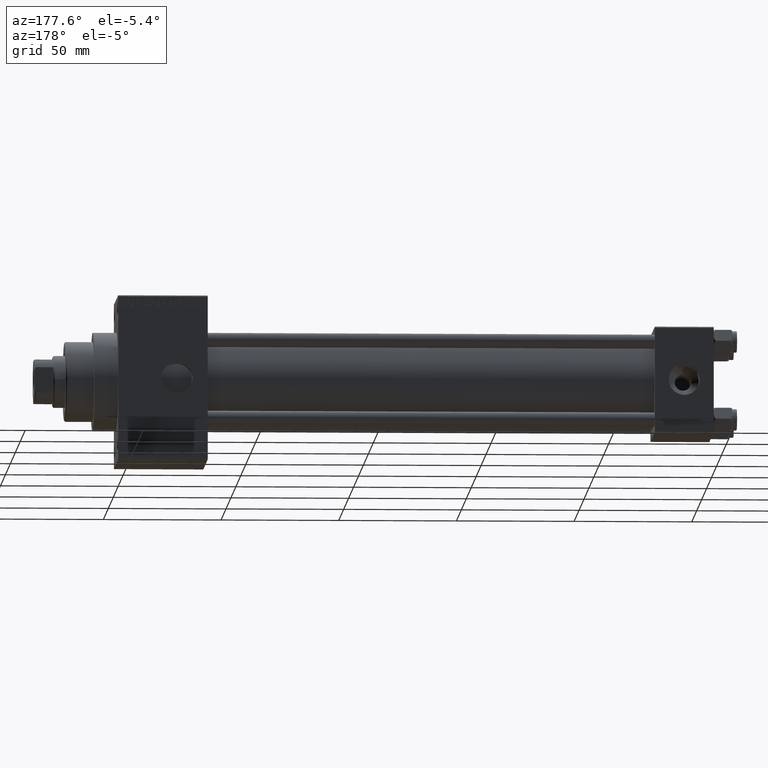
[diagram: clean part render]
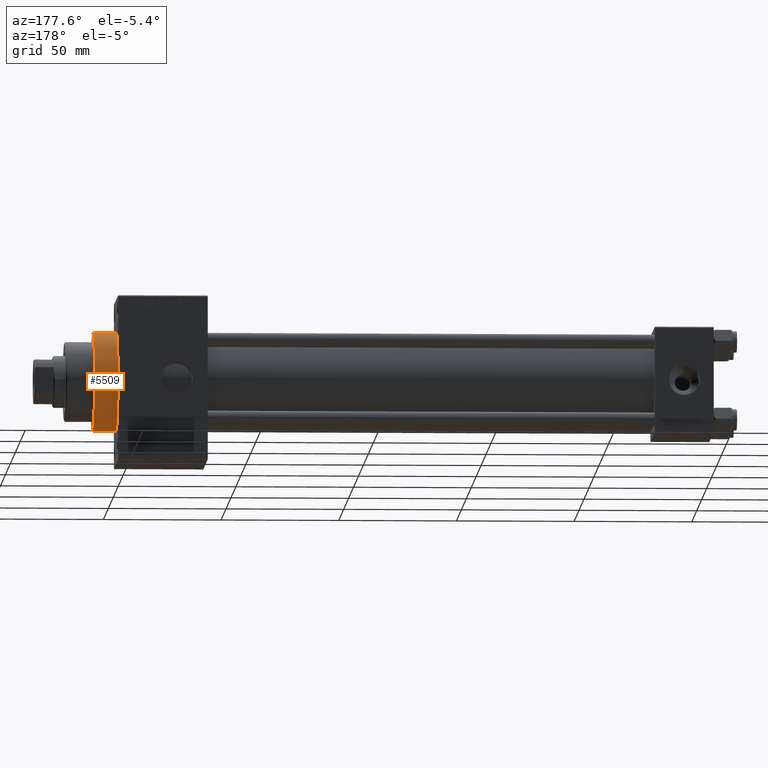
[diagram: same view with one face highlighted and labeled with its STEP entity id]
A machine part, auxiliary view. The second image highlights one B-rep face of the part: STEP entity #5509.
In plain terms, the highlighted cylindrical surface (partial cylindrical patch) has radius 21 mm, axis along (-1, -0, -0).
Its self-contained STEP definition (entity closure, byte-faithful):
#1210 = VERTEX_POINT ( 'NONE', #39305 ) ;
#2318 = CARTESIAN_POINT ( 'NONE',  ( 263.0000000000000000, 2.571758278209441661E-15, -21.00000000000000000 ) ) ;
#2589 = AXIS2_PLACEMENT_3D ( 'NONE', #48600, #14588, #22274 ) ;
#5509 = ADVANCED_FACE ( 'NONE', ( #44649 ), #9903, .T. ) ;
#6485 = AXIS2_PLACEMENT_3D ( 'NONE', #21539, #29485, #7156 ) ;
#7156 = DIRECTION ( 'NONE',  ( 0.000000000000000000, 0.000000000000000000, -1.000000000000000000 ) ) ;
#7865 = EDGE_CURVE ( 'NONE', #1210, #19592, #21527, .T. ) ;
#8787 = EDGE_CURVE ( 'NONE', #13895, #42708, #34251, .T. ) ;
#9903 = CYLINDRICAL_SURFACE ( 'NONE', #22373, 21.00000000000000000 ) ;
#12444 = CARTESIAN_POINT ( 'NONE',  ( 253.0000000000000000, 0.000000000000000000, 21.00000000000000000 ) ) ;
#12483 = ORIENTED_EDGE ( 'NONE', *, *, #36420, .F. ) ;
#13007 = ORIENTED_EDGE ( 'NONE', *, *, #7865, .T. ) ;
#13895 = VERTEX_POINT ( 'NONE', #2318 ) ;
#14588 = DIRECTION ( 'NONE',  ( 1.000000000000000000, 0.000000000000000000, 0.000000000000000000 ) ) ;
#17331 = DIRECTION ( 'NONE',  ( -1.000000000000000000, -0.000000000000000000, -0.000000000000000000 ) ) ;
#17406 = VECTOR ( 'NONE', #47748, 1000.000000000000000 ) ;
#18077 = CARTESIAN_POINT ( 'NONE',  ( 263.0000000000000000, 2.571758278209441661E-15, -21.00000000000000000 ) ) ;
#19592 = VERTEX_POINT ( 'NONE', #12444 ) ;
#20807 = ORIENTED_EDGE ( 'NONE', *, *, #8787, .F. ) ;
#21527 = CIRCLE ( 'NONE', #6485, 21.00000000000000000 ) ;
#21539 = CARTESIAN_POINT ( 'NONE',  ( 253.0000000000000000, 0.000000000000000000, 0.000000000000000000 ) ) ;
#22274 = DIRECTION ( 'NONE',  ( 0.000000000000000000, 0.000000000000000000, -1.000000000000000000 ) ) ;
#22373 = AXIS2_PLACEMENT_3D ( 'NONE', #40675, #17331, #48589 ) ;
#27402 = CARTESIAN_POINT ( 'NONE',  ( 263.0000000000000000, 0.000000000000000000, 21.00000000000000000 ) ) ;
#28978 = ORIENTED_EDGE ( 'NONE', *, *, #48177, .T. ) ;
#29485 = DIRECTION ( 'NONE',  ( 1.000000000000000000, 0.000000000000000000, 0.000000000000000000 ) ) ;
#33532 = VECTOR ( 'NONE', #33719, 1000.000000000000000 ) ;
#33719 = DIRECTION ( 'NONE',  ( -1.000000000000000000, -0.000000000000000000, -0.000000000000000000 ) ) ;
#34251 = CIRCLE ( 'NONE', #2589, 21.00000000000000000 ) ;
#36420 = EDGE_CURVE ( 'NONE', #42708, #19592, #44039, .T. ) ;
#37440 = LINE ( 'NONE', #18077, #33532 ) ;
#39305 = CARTESIAN_POINT ( 'NONE',  ( 253.0000000000000000, 2.571758278209441661E-15, -21.00000000000000000 ) ) ;
#40675 = CARTESIAN_POINT ( 'NONE',  ( 263.0000000000000000, 0.000000000000000000, 0.000000000000000000 ) ) ;
#40800 = CARTESIAN_POINT ( 'NONE',  ( 263.0000000000000000, 0.000000000000000000, 21.00000000000000000 ) ) ;
#41984 = EDGE_LOOP ( 'NONE', ( #20807, #28978, #13007, #12483 ) ) ;
#42708 = VERTEX_POINT ( 'NONE', #27402 ) ;
#44039 = LINE ( 'NONE', #40800, #17406 ) ;
#44649 = FACE_OUTER_BOUND ( 'NONE', #41984, .T. ) ;
#47748 = DIRECTION ( 'NONE',  ( -1.000000000000000000, -0.000000000000000000, -0.000000000000000000 ) ) ;
#48177 = EDGE_CURVE ( 'NONE', #13895, #1210, #37440, .T. ) ;
#48589 = DIRECTION ( 'NONE',  ( 0.000000000000000000, 0.000000000000000000, 1.000000000000000000 ) ) ;
#48600 = CARTESIAN_POINT ( 'NONE',  ( 263.0000000000000000, 0.000000000000000000, 0.000000000000000000 ) ) ;